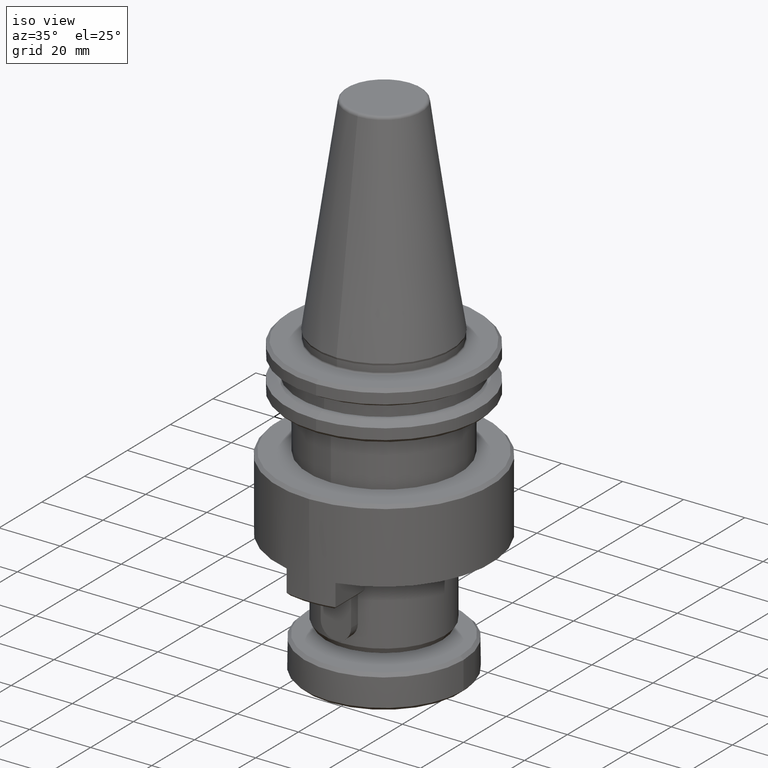
[diagram: clean part render]
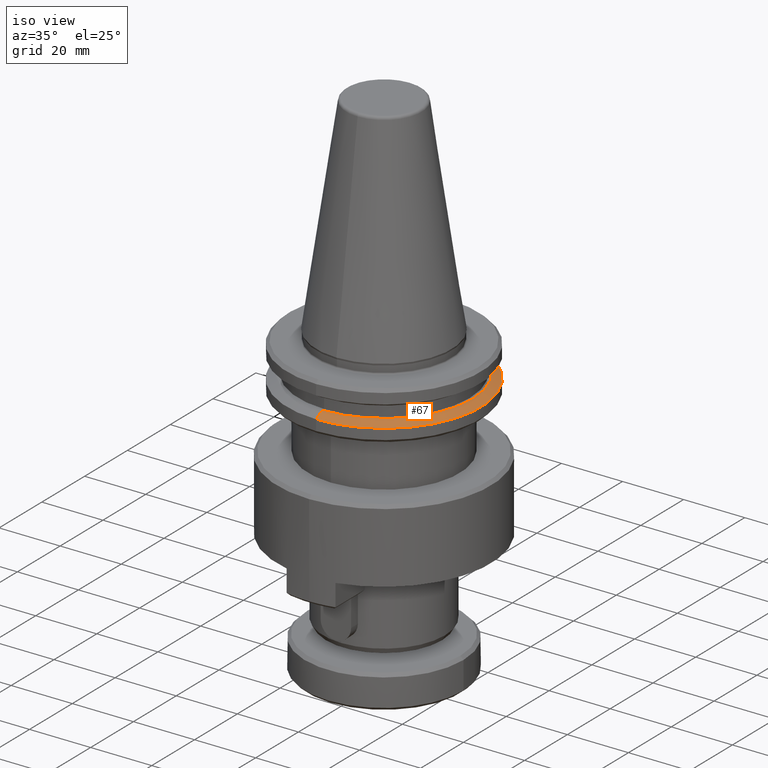
[diagram: same view with one face highlighted and labeled with its STEP entity id]
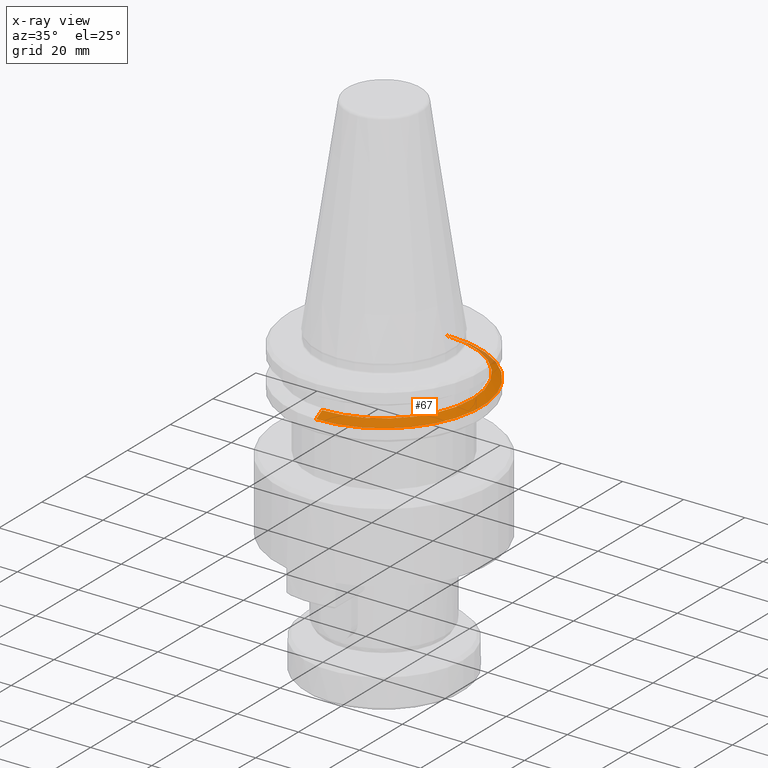
[diagram: x-ray of the same camera — body ghosted, the highlighted face saturated]
A machine part, iso view. The second image highlights one B-rep face of the part: STEP entity #67.
The next image is the same camera in x-ray: the body ghosted, the highlighted face saturated — about 5% of this face is hidden behind the body in this view.
In plain terms, the highlighted conical surface has half-angle 60 deg.
Its self-contained STEP definition (entity closure, byte-faithful):
#6 = VERTEX_POINT ( 'NONE', #2243 ) ;
#47 = CARTESIAN_POINT ( 'NONE',  ( 3.716245608910663200E-015, -28.94089653438131300, -13.00000000000012300 ) ) ;
#67 = ADVANCED_FACE ( 'NONE', ( #1419 ), #1331, .T. ) ;
#89 = DIRECTION ( 'NONE',  ( 0.0000000000000000000, -1.000000000000000000, 0.0000000000000000000 ) ) ;
#94 = DIRECTION ( 'NONE',  ( -0.0000000000000000000, 6.500853926474174700E-029, 1.000000000000000000 ) ) ;
#96 = CARTESIAN_POINT ( 'NONE',  ( 0.0000000000000000000, -5.353410479151958100E-027, -13.00000000000012300 ) ) ;
#333 = AXIS2_PLACEMENT_3D ( 'NONE', #2467, #2464, #2463 ) ;
#545 = DIRECTION ( 'NONE',  ( 0.0000000000000000000, 1.000000000000000000, 0.0000000000000000000 ) ) ;
#573 = CIRCLE ( 'NONE', #1007, 28.94089653438131300 ) ;
#688 = CARTESIAN_POINT ( 'NONE',  ( 0.0000000000000000000, -5.458843710178081500E-027, -14.62183664205657300 ) ) ;
#794 = EDGE_CURVE ( 'NONE', #873, #6, #573, .T. ) ;
#854 = CIRCLE ( 'NONE', #333, 31.75000000000000000 ) ;
#873 = VERTEX_POINT ( 'NONE', #47 ) ;
#1007 = AXIS2_PLACEMENT_3D ( 'NONE', #96, #94, #89 ) ;
#1032 = ORIENTED_EDGE ( 'NONE', *, *, #794, .F. ) ;
#1065 = ORIENTED_EDGE ( 'NONE', *, *, #1702, .T. ) ;
#1083 = ORIENTED_EDGE ( 'NONE', *, *, #1883, .T. ) ;
#1089 = ORIENTED_EDGE ( 'NONE', *, *, #1696, .F. ) ;
#1229 = DIRECTION ( 'NONE',  ( 0.0000000000000000000, -6.500853926474174700E-029, -1.000000000000000000 ) ) ;
#1237 = VERTEX_POINT ( 'NONE', #2171 ) ;
#1331 = CONICAL_SURFACE ( 'NONE', #1346, 31.75000000000000000, 1.047197551196599900 ) ;
#1346 = AXIS2_PLACEMENT_3D ( 'NONE', #688, #1229, #545 ) ;
#1419 = FACE_OUTER_BOUND ( 'NONE', #2125, .T. ) ;
#1509 = VECTOR ( 'NONE', #2425, 1000.000000000000000 ) ;
#1542 = VECTOR ( 'NONE', #2424, 1000.000000000000000 ) ;
#1548 = LINE ( 'NONE', #2566, #1509 ) ;
#1572 = LINE ( 'NONE', #2454, #1542 ) ;
#1696 = EDGE_CURVE ( 'NONE', #6, #2146, #1572, .T. ) ;
#1702 = EDGE_CURVE ( 'NONE', #873, #1237, #1548, .T. ) ;
#1883 = EDGE_CURVE ( 'NONE', #1237, #2146, #854, .T. ) ;
#2011 = CARTESIAN_POINT ( 'NONE',  ( 0.0000000000000000000, 31.75000000000000000, -14.62183664205657300 ) ) ;
#2125 = EDGE_LOOP ( 'NONE', ( #1032, #1065, #1083, #1089 ) ) ;
#2146 = VERTEX_POINT ( 'NONE', #2011 ) ;
#2171 = CARTESIAN_POINT ( 'NONE',  ( 3.888253587292846500E-015, -31.75000000000000000, -14.62183664205657300 ) ) ;
#2243 = CARTESIAN_POINT ( 'NONE',  ( 0.0000000000000000000, 28.94089653438131300, -13.00000000000012300 ) ) ;
#2424 = DIRECTION ( 'NONE',  ( 0.0000000000000000000, 0.8660254037844397100, -0.4999999999999981700 ) ) ;
#2425 = DIRECTION ( 'NONE',  ( 1.060575238724908100E-016, -0.8660254037844397100, -0.4999999999999981700 ) ) ;
#2454 = CARTESIAN_POINT ( 'NONE',  ( 0.0000000000000000000, 31.75000000000000000, -14.62183664205657300 ) ) ;
#2463 = DIRECTION ( 'NONE',  ( 0.0000000000000000000, -1.000000000000000000, 0.0000000000000000000 ) ) ;
#2464 = DIRECTION ( 'NONE',  ( -0.0000000000000000000, 6.500853926474174700E-029, 1.000000000000000000 ) ) ;
#2467 = CARTESIAN_POINT ( 'NONE',  ( 0.0000000000000000000, -5.458843710178081500E-027, -14.62183664205657300 ) ) ;
#2566 = CARTESIAN_POINT ( 'NONE',  ( 3.888253587292846500E-015, -31.75000000000000000, -14.62183664205657300 ) ) ;